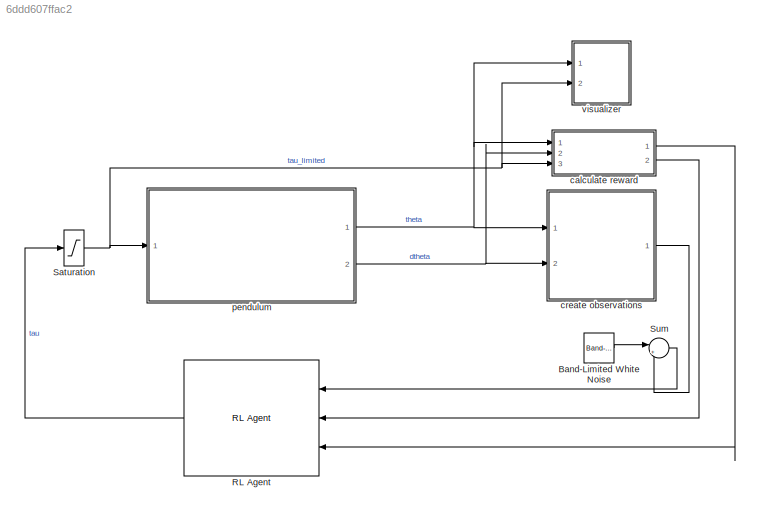
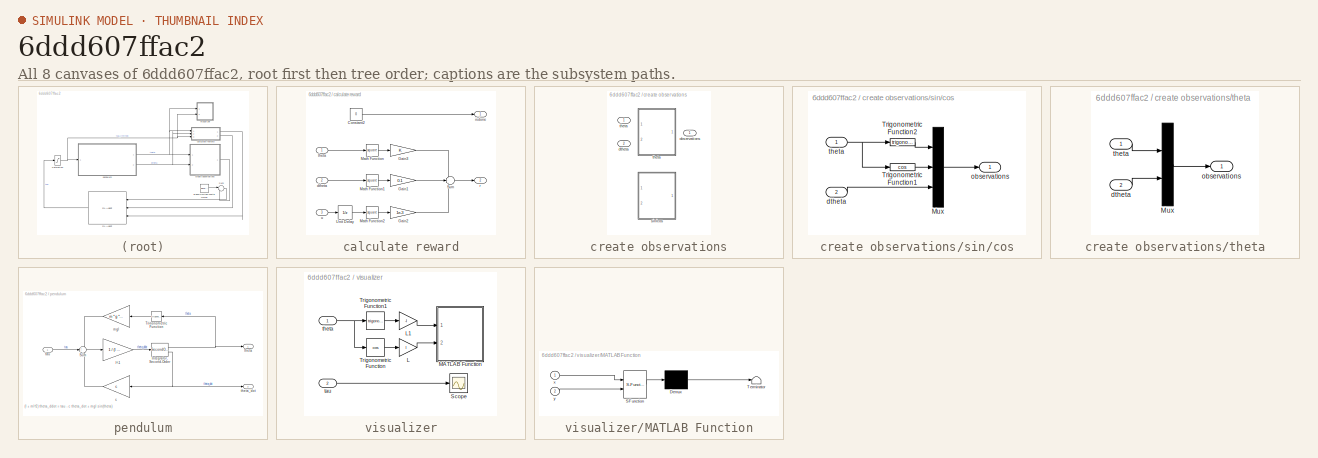
[diagram: thumbnail index - all 8 canvases of the model, root first then tree order]
MODEL slx_6ddd607ffac2
KIND model
CONFIG AbsTol = 1e-6
CONFIG EnableMultiTasking = off
CONFIG FixedStep = auto
CONFIG MaxStep = auto
CONFIG MinStep = auto
CONFIG RelTol = 1e-5
CONFIG SampleTimeConstraint = Unconstrained
CONFIG SolverName = ode45
CONFIG StartTime = 0.0
CONFIG StopTime = Tf
WORKSPACE source: mxarray member
WORKSPACE I = 0
WORKSPACE c = 0
WORKSPACE g = 9.81
WORKSPACE l = 1
WORKSPACE m = 1
WORKSPACE max_tau = 2
WORKSPACE theta0 = 0
WORKSPACE theta_dot0 = 0
BLOCK [Reference] Band-Limited White Noise  REF=simulink/Sources/Band-Limited
White Noise
  Ports = [0, 1]
  SourceBlock = simulink/Sources/Band-Limited\nWhite Noise
  SourceProductBaseCode = SL
  SourceType = Band-Limited White Noise.
BLOCK [Reference] RL Agent  REF=rllib/RL Agent
  Ports = [3, 1]
  SourceBlock = rllib/RL Agent
  SourceProductBaseCode = RL
  SourceType = RL Agent
BLOCK [Saturate] Saturation
  LowerLimit = -max_tau
  UpperLimit = max_tau
BLOCK [Sum] Sum
  Inputs = |++
  Ports = [2, 1]
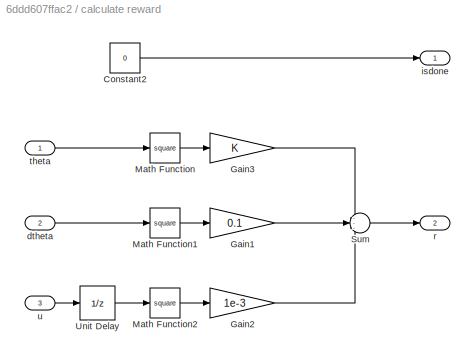
BLOCK [SubSystem] calculate reward
  Ports = [3, 2]
  RequestExecContextInheritance = off
BLOCK [Constant] calculate reward/Constant2
  Value = 0
BLOCK [Gain] calculate reward/Gain1
  Gain = 0.1
BLOCK [Gain] calculate reward/Gain2
  Gain = 1e-3
BLOCK [Gain] calculate reward/Gain3
BLOCK [Math] calculate reward/Math Function
  Operator = square
  Ports = [1, 1]
  SignedPower = on
BLOCK [Math] calculate reward/Math Function1
  Operator = square
  Ports = [1, 1]
  SignedPower = on
BLOCK [Math] calculate reward/Math Function2
  Operator = square
  Ports = [1, 1]
  SignedPower = on
BLOCK [Sum] calculate reward/Sum
  Inputs = ---
  Ports = [3, 1]
BLOCK [UnitDelay] calculate reward/Unit Delay
  HasFrameUpgradeWarning = on
  SampleTime = -1
BLOCK [Inport] calculate reward/dtheta
  Port = 2
BLOCK [Outport] calculate reward/isdone
  VectorParamsAs1DForOutWhenUnconnected = off
BLOCK [Outport] calculate reward/r
  Port = 2
  VectorParamsAs1DForOutWhenUnconnected = off
BLOCK [Inport] calculate reward/theta
BLOCK [Inport] calculate reward/u
  Port = 3
BLOCK [SubSystem] create observations
  LabelModeActiveChoice = theta
  Ports = [2, 1]
  RequestExecContextInheritance = off
  Variant = on
  VariantControl = Variant1
  VariantControlMode = label
BLOCK [Outport] create observations/ observations
  VectorParamsAs1DForOutWhenUnconnected = off
BLOCK [Inport] create observations/dtheta 
  Port = 2
BLOCK [SubSystem] create observations/sin//cos
  Ports = [2, 1]
  RequestExecContextInheritance = off
  VariantControl = sincos
BLOCK [Mux] create observations/sin//cos/Mux
  DisplayOption = bar
  Inputs = 3
  Ports = [3, 1]
BLOCK [Trigonometry] create observations/sin//cos/Trigonometric Function1
  Operator = cos
  Ports = [1, 1]
BLOCK [Trigonometry] create observations/sin//cos/Trigonometric Function2
  Ports = [1, 1]
BLOCK [Inport] create observations/sin//cos/dtheta
  Port = 2
BLOCK [Outport] create observations/sin//cos/observations
  NameLocation = top
  VectorParamsAs1DForOutWhenUnconnected = off
BLOCK [Inport] create observations/sin//cos/theta
BLOCK [SubSystem] create observations/theta
  Ports = [2, 1]
  RequestExecContextInheritance = off
  VariantControl = theta
BLOCK [Inport] create observations/theta 
BLOCK [Mux] create observations/theta/Mux
  DisplayOption = bar
  Inputs = 2
  Ports = [2, 1]
BLOCK [Inport] create observations/theta/dtheta
  Port = 2
BLOCK [Outport] create observations/theta/observations
  NameLocation = top
  VectorParamsAs1DForOutWhenUnconnected = off
BLOCK [Inport] create observations/theta/theta
BLOCK [SubSystem] pendulum
  Ports = [1, 2]
  RequestExecContextInheritance = off
BLOCK [Gain] pendulum/I^-1
  Gain = 1 / (I + m * l^2)
BLOCK [SecondOrderIntegrator] pendulum/Integrator, Second-Order
  ICDXDT = theta_dot0
  ICX = theta0
  LowerLimitX = 0
  Ports = [1, 2]
  StateNameDXDT = 'theta_dot'
  StateNameX = 'theta'
  UpperLimitX = 1
BLOCK [Sum] pendulum/Sum
  Inputs = ++-
  Ports = [3, 1]
BLOCK [Trigonometry] pendulum/Trigonometric Function
  NameLocation = top
  Ports = [1, 1]
BLOCK [Gain] pendulum/c
  Gain = c
  NameLocation = top
BLOCK [Gain] pendulum/mgl
  Gain = m * g * l
  NameLocation = top
BLOCK [Inport] pendulum/tau
BLOCK [Outport] pendulum/theta
  VectorParamsAs1DForOutWhenUnconnected = off
BLOCK [Outport] pendulum/theta_dot
  Port = 2
  VectorParamsAs1DForOutWhenUnconnected = off
BLOCK [SubSystem] visualizer
  Ports = [2]
  RequestExecContextInheritance = off
BLOCK [Gain] visualizer/L
  Gain = l
BLOCK [Gain] visualizer/L1
  Gain = -l
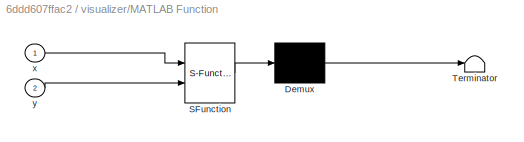
BLOCK [SubSystem] visualizer/MATLAB Function
  ErrorFcn = Stateflow.Translate.translate
  PermitHierarchicalResolution = ExplicitOnly
  Ports = [2]
  RequestExecContextInheritance = off
  SFBlockType = MATLAB Function
  TreatAsAtomicUnit = on
BLOCK [Demux] visualizer/MATLAB Function/ Demux 
  Outputs = 1
  Ports = [1, 1]
BLOCK [S-Function] visualizer/MATLAB Function/ SFunction 
  EnableBusSupport = on
  FunctionName = sf_sfun
  PortCounts = [2 1]
  Ports = [2, 1]
  SFcnIsStateOwnerBlock = off
  SFunctionDeploymentMode = off
  Tag = Stateflow S-Function 2
BLOCK [Terminator] visualizer/MATLAB Function/ Terminator 
BLOCK [Inport] visualizer/MATLAB Function/x
BLOCK [Inport] visualizer/MATLAB Function/y
  Port = 2
BLOCK [Scope] visualizer/Scope
  Floating = off
  NumInputPorts = 1
  Ports = [1]
  ScopeSpecificationString = Simulink.scopes.TimeScopeBlockCfg('CurrentConfiguration', extmgr.ConfigurationSet(extmgr.Configuration('Core','General UI',true),extmgr.Configuration('Core','Source UI',true),extmgr.Configuration('Sources','WiredSimulink',true),extmgr.Configuration('Visuals','Time Domain',true,'SerializedDisplays',{struct('MinYLimReal','-2.2','MaxYLimReal','2.2','YLabelReal','','MinYLimMag','1.93638','MaxYLimMag',...<+1381ch>
BLOCK [Trigonometry] visualizer/Trigonometric Function
  Operator = cos
  Ports = [1, 1]
BLOCK [Trigonometry] visualizer/Trigonometric Function1
  Ports = [1, 1]
BLOCK [Inport] visualizer/tau
  NameLocation = top
  Port = 2
BLOCK [Inport] visualizer/theta
  NameLocation = top
ANNOTATION pendulum: (I + ml^2) theta_ddot = tau - c theta_dot + mgl sin(theta)
LINE Band-Limited White Noise:1 -> Sum:1
LINE RL Agent:1 -> Saturation:1
NET Saturation:1 -> calculate reward:3, pendulum:1, visualizer:2
LINE Sum:1 -> RL Agent:1
LINE calculate reward/Constant2:1 -> calculate reward/isdone:1
LINE calculate reward/Gain1:1 -> calculate reward/Sum:2
LINE calculate reward/Gain2:1 -> calculate reward/Sum:3
LINE calculate reward/Gain3:1 -> calculate reward/Sum:1
LINE calculate reward/Math Function1:1 -> calculate reward/Gain1:1
LINE calculate reward/Math Function2:1 -> calculate reward/Gain2:1
LINE calculate reward/Math Function:1 -> calculate reward/Gain3:1
LINE calculate reward/Sum:1 -> calculate reward/r:1
LINE calculate reward/Unit Delay:1 -> calculate reward/Math Function2:1
LINE calculate reward/dtheta:1 -> calculate reward/Math Function1:1
LINE calculate reward/theta:1 -> calculate reward/Math Function:1
LINE calculate reward/u:1 -> calculate reward/Unit Delay:1
LINE calculate reward:1 -> RL Agent:3
LINE calculate reward:2 -> RL Agent:2
LINE create observations/sin//cos/Mux:1 -> create observations/sin//cos/observations:1
LINE create observations/sin//cos/Trigonometric Function1:1 -> create observations/sin//cos/Mux:2
LINE create observations/sin//cos/Trigonometric Function2:1 -> create observations/sin//cos/Mux:1
LINE create observations/sin//cos/dtheta:1 -> create observations/sin//cos/Mux:3
NET create observations/sin//cos/theta:1 -> create observations/sin//cos/Trigonometric Function1:1, create observations/sin//cos/Trigonometric Function2:1
LINE create observations/theta/Mux:1 -> create observations/theta/observations:1
LINE create observations/theta/dtheta:1 -> create observations/theta/Mux:2
LINE create observations/theta/theta:1 -> create observations/theta/Mux:1
LINE create observations:1 -> Sum:2
LINE pendulum/I^-1:1 -> pendulum/Integrator, Second-Order:1
NET pendulum/Integrator, Second-Order:1 -> pendulum/Trigonometric Function:1, pendulum/theta:1
NET pendulum/Integrator, Second-Order:2 -> pendulum/c:1, pendulum/theta_dot:1
LINE pendulum/Sum:1 -> pendulum/I^-1:1
LINE pendulum/Trigonometric Function:1 -> pendulum/mgl:1
LINE pendulum/c:1 -> pendulum/Sum:3
LINE pendulum/mgl:1 -> pendulum/Sum:1
LINE pendulum/tau:1 -> pendulum/Sum:2
NET pendulum:1 -> calculate reward:1, create observations:1, visualizer:1
NET pendulum:2 -> calculate reward:2, create observations:2
LINE visualizer/L1:1 -> visualizer/MATLAB Function:1
LINE visualizer/L:1 -> visualizer/MATLAB Function:2
LINE visualizer/Trigonometric Function1:1 -> visualizer/L1:1
LINE visualizer/Trigonometric Function:1 -> visualizer/L:1
LINE visualizer/tau:1 -> visualizer/Scope:1
NET visualizer/theta:1 -> visualizer/Trigonometric Function1:1, visualizer/Trigonometric Function:1
note: NET lines group one-source signal fan-out (src -> all destinations, sorted); 1:1 wires keep LINE
CHART visualizer/MATLAB Function states=1 transitions=1
  STATE_LABEL 'eML_blk_kernel()'
  STATE_LABEL "SCRIPT:\nfunction plotPend(x,y)\n% plot the simple pendulum\ncoder.extrinsic('rl.env.viz.plotSimplePendulum');\nrl.env.viz.plotSimplePendulum(x,y);\n"
CHART  states=0 transitions=0
